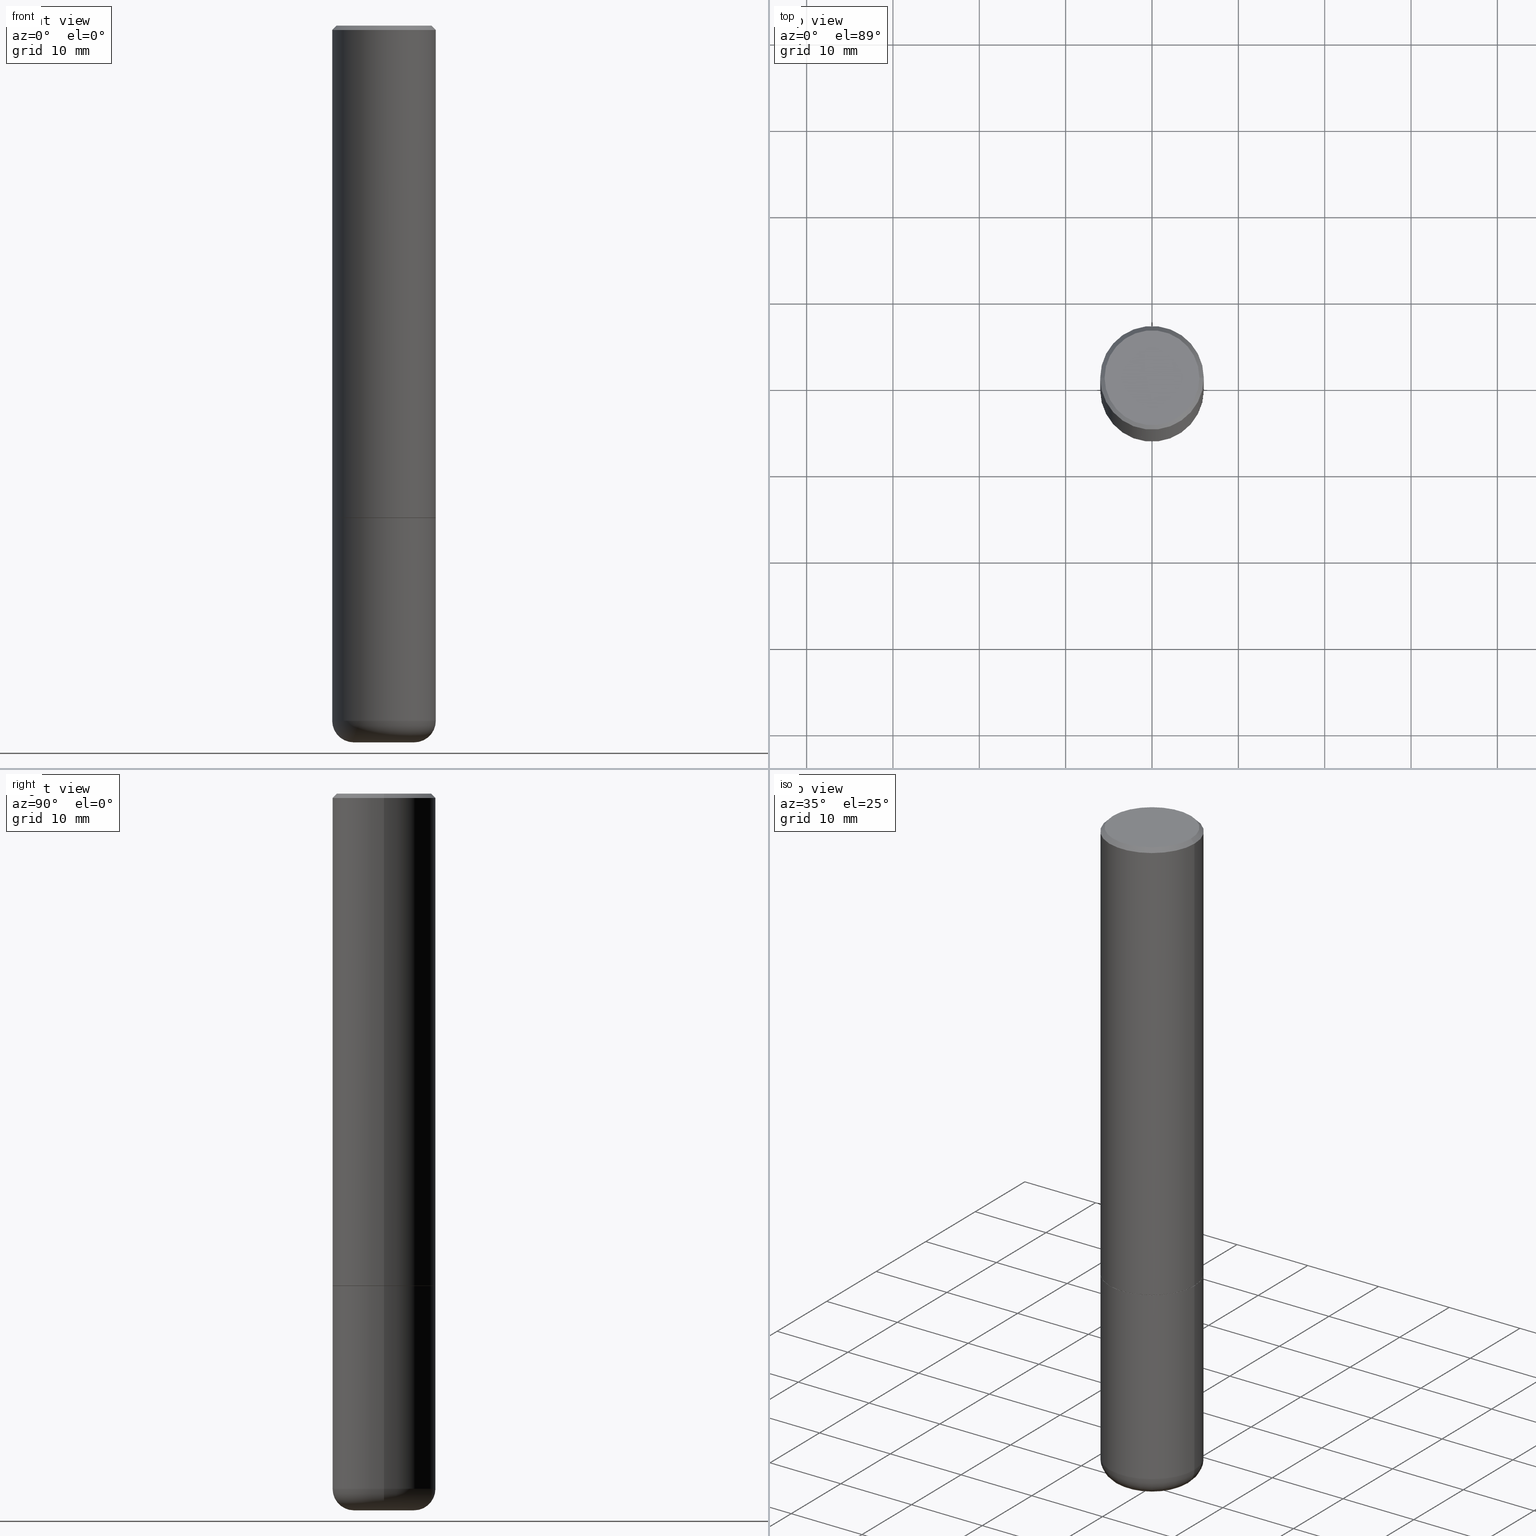
[diagram: canonical four-view strip — front | top / right | iso, engineering-drawing reading convention]
A machine part, canonical four-view strip (front | top / right | iso — engineering-drawing reading convention). The complete STEP part file that produces these views, byte-faithful:
ISO-10303-21;
HEADER;
FILE_DESCRIPTION (( 'STEP AP203' ),
    '1' );
FILE_NAME ('47030.STEP',
    '2024-03-05T13:02:55',
    ( '' ),
    ( '' ),
    'SwSTEP 2.0',
    'SolidWorks 2023',
    '' );
FILE_SCHEMA (( 'CONFIG_CONTROL_DESIGN' ));
ENDSEC;

DATA;
#1 = DIRECTION ( 'NONE',  ( -2.445468806185136597E-29, 3.491481338843145583E-15, 1.000000000000000000 ) ) ;
#2 = ORIENTED_EDGE ( 'NONE', *, *, #337, .F. ) ;
#3 = CARTESIAN_POINT ( 'NONE',  ( 4.890937612370285420E-31, -6.982962677686308865E-17, -0.02000000000000005246 ) ) ;
#4 = DIRECTION ( 'NONE',  ( 1.000000000000000000, -6.982962677686265922E-15, 0.000000000000000000 ) ) ;
#5 = EDGE_CURVE ( 'NONE', #372, #361, #114, .T. ) ;
#6 = EDGE_LOOP ( 'NONE', ( #398, #96 ) ) ;
#7 = CARTESIAN_POINT ( 'NONE',  ( 5.487876547960064752E-29, -7.835233272497902340E-15, -2.244099999999999984 ) ) ;
#8 = VECTOR ( 'NONE', #365, 39.37007874015748143 ) ;
#9 = APPROVAL ( #18, 'UNSPECIFIED' ) ;
#10 = CARTESIAN_POINT ( 'NONE',  ( 5.487876547960065873E-29, -7.835233272497903917E-15, -2.244100000000000428 ) ) ;
#11 = ORIENTED_EDGE ( 'NONE', *, *, #197, .F. ) ;
#12 = CARTESIAN_POINT ( 'NONE',  ( -0.2362000000000001321, 1.678301941865357577E-15, -1.161852468318209457E-29 ) ) ;
#13 = FACE_OUTER_BOUND ( 'NONE', #111, .T. ) ;
#14 = CIRCLE ( 'NONE', #269, 0.2362000000000000210 ) ;
#15 = ORIENTED_EDGE ( 'NONE', *, *, #363, .F. ) ;
#16 = SECURITY_CLASSIFICATION_LEVEL ( 'unclassified' ) ;
#17 = VERTEX_POINT ( 'NONE', #169 ) ;
#18 = APPROVAL_STATUS ( 'not_yet_approved' ) ;
#19 = EDGE_CURVE ( 'NONE', #196, #287, #237, .T. ) ;
#20 = VERTEX_POINT ( 'NONE', #342 ) ;
#21 = PERSON_AND_ORGANIZATION ( #63, #239 ) ;
#22 = VECTOR ( 'NONE', #134, 39.37007874015748143 ) ;
#23 = CIRCLE ( 'NONE', #52, 0.1378000000000000058 ) ;
#24 = FACE_OUTER_BOUND ( 'NONE', #43, .T. ) ;
#25 = ADVANCED_FACE ( 'NONE', ( #47 ), #244, .T. ) ;
#26 = EDGE_CURVE ( 'NONE', #74, #378, #318, .T. ) ;
#27 = DATE_AND_TIME ( #249, #290 ) ;
#28 = AXIS2_PLACEMENT_3D ( 'NONE', #152, #409, #256 ) ;
#29 = APPROVAL_PERSON_ORGANIZATION ( #379, #267, #350 ) ;
#30 = COORDINATED_UNIVERSAL_TIME_OFFSET ( 5, 0, .BEHIND. ) ;
#31 = DIRECTION ( 'NONE',  ( -2.445468806185136597E-29, 3.491481338843145583E-15, 1.000000000000000000 ) ) ;
#32 = CARTESIAN_POINT ( 'NONE',  ( -0.2361999999999999933, -7.772090597981385734E-15, -2.244100000000000428 ) ) ;
#33 = EDGE_CURVE ( 'NONE', #55, #17, #212, .T. ) ;
#34 = ORIENTED_EDGE ( 'NONE', *, *, #351, .T. ) ;
#35 = DIRECTION ( 'NONE',  ( -2.445468806185136597E-29, 3.491481338843145583E-15, 1.000000000000000000 ) ) ;
#36 = ORIENTED_EDGE ( 'NONE', *, *, #33, .T. ) ;
#37 = PRODUCT_DEFINITION ( 'UNKNOWN', '', #87, #126 ) ;
#38 = CARTESIAN_POINT ( 'NONE',  ( 0.2361999999999999933, -1.649375784469496131E-15, 1.151752954443000088E-29 ) ) ;
#39 = EDGE_CURVE ( 'NONE', #20, #17, #304, .T. ) ;
#40 = DIRECTION ( 'NONE',  ( -2.445468806185136877E-29, 3.491481338843145188E-15, 1.000000000000000000 ) ) ;
#41 = ORIENTED_EDGE ( 'NONE', *, *, #368, .F. ) ;
#42 = CARTESIAN_POINT ( 'NONE',  ( 0.000000000000000000, 0.000000000000000000, 0.000000000000000000 ) ) ;
#43 = EDGE_LOOP ( 'NONE', ( #241, #301, #407, #400 ) ) ;
#44 = DIRECTION ( 'NONE',  ( -2.445468806185136597E-29, 3.491481338843145583E-15, 1.000000000000000000 ) ) ;
#45 = CARTESIAN_POINT ( 'NONE',  ( 4.890937612370285420E-31, -6.982962677686308865E-17, -0.02000000000000005246 ) ) ;
#46 = DIRECTION ( 'NONE',  ( -2.438088387897960049E-29, 3.491481338843145188E-15, 1.000000000000000000 ) ) ;
#47 = FACE_OUTER_BOUND ( 'NONE', #69, .T. ) ;
#48 = CARTESIAN_POINT ( 'NONE',  ( 1.509716530915769534E-15, 0.2161999999999998368, -6.822935531261805704E-16 ) ) ;
#49 = EDGE_LOOP ( 'NONE', ( #376, #259, #127, #178 ) ) ;
#50 = DIRECTION ( 'NONE',  ( -2.445468806185136597E-29, 3.491481338843145583E-15, 1.000000000000000000 ) ) ;
#51 = CLOSED_SHELL ( 'NONE', ( #139, #25, #179, #215, #387, #183, #258, #340 ) ) ;
#52 = AXIS2_PLACEMENT_3D ( 'NONE', #268, #44, #73 ) ;
#53 = CARTESIAN_POINT ( 'NONE',  ( 0.000000000000000000, 0.000000000000000000, 0.000000000000000000 ) ) ;
#54 = COORDINATED_UNIVERSAL_TIME_OFFSET ( 5, 0, .BEHIND. ) ;
#55 = VERTEX_POINT ( 'NONE', #270 ) ;
#56 = DIRECTION ( 'NONE',  ( 0.000000000000000000, 0.000000000000000000, 1.000000000000000000 ) ) ;
#57 = DIRECTION ( 'NONE',  ( -1.000000000000000000, 6.982962677686266711E-15, 0.000000000000000000 ) ) ;
#58 = COORDINATED_UNIVERSAL_TIME_OFFSET ( 5, 0, .BEHIND. ) ;
#59 = CONICAL_SURFACE ( 'NONE', #288, 0.2361999999999999933, 0.7853981633974473908 ) ;
#60 = AXIS2_PLACEMENT_3D ( 'NONE', #97, #335, #170 ) ;
#61 = DATE_TIME_ROLE ( 'creation_date' ) ;
#62 = CARTESIAN_POINT ( 'NONE',  ( 0.2362000000000002153, -1.271492759166507844E-14, -3.169299999999999784 ) ) ;
#63 = PERSON ( 'UNSPECIFIED', 'UNSPECIFIED', 'UNSPECIFIED', ('UNSPECIFIED'), ('UNSPECIFIED'), ('UNSPECIFIED') ) ;
#64 = DIRECTION ( 'NONE',  ( -1.000000000000000000, 6.982962677686265922E-15, -4.876176775795935793E-29 ) ) ;
#65 = EDGE_LOOP ( 'NONE', ( #306, #242, #36, #275 ) ) ;
#66 = LINE ( 'NONE', #257, #313 ) ;
#67 = AXIS2_PLACEMENT_3D ( 'NONE', #7, #50, #377 ) ;
#68 = CARTESIAN_POINT ( 'NONE',  ( 7.750424287442554569E-29, -1.106555180719558034E-14, -3.169299999999999784 ) ) ;
#69 = EDGE_LOOP ( 'NONE', ( #374, #116, #228, #98 ) ) ;
#70 = CC_DESIGN_DATE_AND_TIME_ASSIGNMENT ( #83, #343, ( #213 ) ) ;
#71 = DIRECTION ( 'NONE',  ( 1.000000000000000000, -6.982962677686272233E-15, 0.000000000000000000 ) ) ;
#72 = VERTEX_POINT ( 'NONE', #62 ) ;
#73 = DIRECTION ( 'NONE',  ( 1.000000000000000000, -6.982962677686265922E-15, 0.000000000000000000 ) ) ;
#74 = VERTEX_POINT ( 'NONE', #32 ) ;
#75 = AXIS2_PLACEMENT_3D ( 'NONE', #251, #281, #192 ) ;
#76 = CC_DESIGN_APPROVAL ( #294, ( #213 ) ) ;
#77 = DIRECTION ( 'NONE',  ( 2.438088387897960049E-29, -3.491481338843145188E-15, -1.000000000000000000 ) ) ;
#78 = DIRECTION ( 'NONE',  ( 1.000000000000000000, -6.982962677686266711E-15, 0.000000000000000000 ) ) ;
#79 = LINE ( 'NONE', #101, #8 ) ;
#80 = ORIENTED_EDGE ( 'NONE', *, *, #120, .T. ) ;
#81 = PERSON_AND_ORGANIZATION_ROLE ( 'creator' ) ;
#82 = ORIENTED_EDGE ( 'NONE', *, *, #254, .T. ) ;
#83 = DATE_AND_TIME ( #375, #137 ) ;
#84 = DIRECTION ( 'NONE',  ( -2.445468806185136597E-29, 3.491481338843145583E-15, 1.000000000000000000 ) ) ;
#85 = ORIENTED_EDGE ( 'NONE', *, *, #411, .F. ) ;
#86 = AXIS2_PLACEMENT_3D ( 'NONE', #53, #84, #144 ) ;
#87 = PRODUCT_DEFINITION_FORMATION_WITH_SPECIFIED_SOURCE ( 'ANY', '', #104, .NOT_KNOWN. ) ;
#88 = APPROVAL_ROLE ( '' ) ;
#89 = FACE_OUTER_BOUND ( 'NONE', #264, .T. ) ;
#90 = DIRECTION ( 'NONE',  ( -2.445468806185136877E-29, 3.491481338843145188E-15, 1.000000000000000000 ) ) ;
#91 =( GEOMETRIC_REPRESENTATION_CONTEXT ( 3 ) GLOBAL_UNCERTAINTY_ASSIGNED_CONTEXT ( ( #317 ) ) GLOBAL_UNIT_ASSIGNED_CONTEXT ( ( #117, #247, #282 ) ) REPRESENTATION_CONTEXT ( 'NONE', 'WORKASPACE' ) );
#92 = PLANE ( 'NONE',  #223 ) ;
#93 = ADVANCED_FACE ( 'NONE', ( #24 ), #181, .T. ) ;
#94 = DIRECTION ( 'NONE',  ( -2.445468806185136597E-29, 3.491481338843145583E-15, 1.000000000000000000 ) ) ;
#95 = EDGE_CURVE ( 'NONE', #295, #72, #14, .T. ) ;
#96 = ORIENTED_EDGE ( 'NONE', *, *, #274, .T. ) ;
#97 = CARTESIAN_POINT ( 'NONE',  ( -3.549094808739746881E-45, 5.067166779293519988E-31, 1.451294246634139896E-16 ) ) ;
#98 = ORIENTED_EDGE ( 'NONE', *, *, #218, .F. ) ;
#99 = PLANE ( 'NONE',  #360 ) ;
#100 = EDGE_LOOP ( 'NONE', ( #2, #344, #34, #206 ) ) ;
#101 = CARTESIAN_POINT ( 'NONE',  ( -0.2351999999999999924, -6.164036757990146954E-15, -2.244099999999999984 ) ) ;
#102 = EDGE_CURVE ( 'NONE', #273, #20, #381, .T. ) ;
#103 = DIRECTION ( 'NONE',  ( 0.7071067811865469066, -7.319954787623254468E-15, -0.7071067811865481278 ) ) ;
#104 = PRODUCT ( '47030', '47030', '', ( #345 ) ) ;
#105 = ORIENTED_EDGE ( 'NONE', *, *, #309, .T. ) ;
#106 = AXIS2_PLACEMENT_3D ( 'NONE', #235, #370, #395 ) ;
#107 = CIRCLE ( 'NONE', #67, 0.2351999999999999924 ) ;
#108 = ORIENTED_EDGE ( 'NONE', *, *, #302, .T. ) ;
#109 = CALENDAR_DATE ( 2024, 5, 3 ) ;
#110 = ADVANCED_FACE ( 'NONE', ( #189 ), #224, .T. ) ;
#111 = EDGE_LOOP ( 'NONE', ( #299, #85 ) ) ;
#112 = DATE_AND_TIME ( #109, #118 ) ;
#113 = ORIENTED_EDGE ( 'NONE', *, *, #368, .T. ) ;
#114 = CIRCLE ( 'NONE', #219, 0.2351999999999999924 ) ;
#115 = AXIS2_PLACEMENT_3D ( 'NONE', #42, #296, #330 ) ;
#116 = ORIENTED_EDGE ( 'NONE', *, *, #39, .T. ) ;
#117 =( CONVERSION_BASED_UNIT ( 'INCH', #410 ) LENGTH_UNIT ( ) NAMED_UNIT ( #356 ) );
#118 = LOCAL_TIME ( 8, 2, 55.00000000000000000, #58 ) ;
#119 = DIRECTION ( 'NONE',  ( -2.445468806185136597E-29, 3.491481338843145583E-15, 1.000000000000000000 ) ) ;
#120 = EDGE_CURVE ( 'NONE', #196, #17, #216, .T. ) ;
#121 = DIRECTION ( 'NONE',  ( -2.445468806185136877E-29, 3.491481338843145188E-15, 1.000000000000000000 ) ) ;
#122 = DIRECTION ( 'NONE',  ( -2.445468806185136597E-29, 3.491481338843145583E-15, 1.000000000000000000 ) ) ;
#123 = CIRCLE ( 'NONE', #246, 0.1378000000000000058 ) ;
#124 = CYLINDRICAL_SURFACE ( 'NONE', #28, 0.2361999999999999933 ) ;
#125 = CARTESIAN_POINT ( 'NONE',  ( 7.750424287442554569E-29, -1.106555180719558034E-14, -3.169299999999999784 ) ) ;
#126 = DESIGN_CONTEXT ( 'detailed design', #298, 'design' ) ;
#127 = ORIENTED_EDGE ( 'NONE', *, *, #102, .F. ) ;
#128 = CARTESIAN_POINT ( 'NONE',  ( 0.2351999999999999924, -9.477626094289712851E-15, -2.244099999999999984 ) ) ;
#129 = CARTESIAN_POINT ( 'NONE',  ( -0.2362000000000002153, -9.387249865330223945E-15, -3.169299999999999784 ) ) ;
#130 = EDGE_CURVE ( 'NONE', #72, #378, #187, .T. ) ;
#131 = CARTESIAN_POINT ( 'NONE',  ( -0.1378000000000000058, -9.908617773195273284E-15, -3.267700000000000937 ) ) ;
#132 = DIRECTION ( 'NONE',  ( -2.445468806185136597E-29, 3.491481338843145583E-15, 1.000000000000000000 ) ) ;
#133 = DIRECTION ( 'NONE',  ( -2.445468806185136597E-29, 3.491481338843145583E-15, 1.000000000000000000 ) ) ;
#134 = DIRECTION ( 'NONE',  ( -2.445468806185136877E-29, 3.491481338843145188E-15, 1.000000000000000000 ) ) ;
#135 = MANIFOLD_SOLID_BREP ( 'Body-Move/Copy2[2]', #51 ) ;
#136 = AXIS2_PLACEMENT_3D ( 'NONE', #125, #122, #161 ) ;
#137 = LOCAL_TIME ( 8, 2, 55.00000000000000000, #243 ) ;
#138 = CARTESIAN_POINT ( 'NONE',  ( 0.2351999999999999924, -9.477626094289712851E-15, -2.244099999999999984 ) ) ;
#139 = ADVANCED_FACE ( 'NONE', ( #157 ), #412, .T. ) ;
#140 = ORIENTED_EDGE ( 'NONE', *, *, #130, .T. ) ;
#141 = PERSON_AND_ORGANIZATION ( #63, #239 ) ;
#142 = DIRECTION ( 'NONE',  ( 1.000000000000000000, -6.982962677686268288E-15, 0.000000000000000000 ) ) ;
#143 = APPROVAL_STATUS ( 'not_yet_approved' ) ;
#144 = DIRECTION ( 'NONE',  ( 1.000000000000000000, -6.982962677686266711E-15, 4.876176775795936353E-29 ) ) ;
#145 = AXIS2_PLACEMENT_3D ( 'NONE', #222, #384, #352 ) ;
#146 = PERSON_AND_ORGANIZATION_ROLE ( 'design_owner' ) ;
#147 = VECTOR ( 'NONE', #40, 39.37007874015748143 ) ;
#148 = PLANE ( 'NONE',  #75 ) ;
#149 = APPLICATION_PROTOCOL_DEFINITION ( 'international standard', 'config_control_design', 1994, #298 ) ;
#150 = APPROVAL_DATE_TIME ( #415, #294 ) ;
#151 = CIRCLE ( 'NONE', #172, 0.2361999999999999933 ) ;
#152 = CARTESIAN_POINT ( 'NONE',  ( 0.000000000000000000, 0.000000000000000000, 0.000000000000000000 ) ) ;
#153 = DIRECTION ( 'NONE',  ( 2.445468806185136597E-29, -3.491481338843145583E-15, -1.000000000000000000 ) ) ;
#154 = ORIENTED_EDGE ( 'NONE', *, *, #95, .T. ) ;
#155 = ADVANCED_FACE ( 'NONE', ( #354 ), #148, .F. ) ;
#156 = SHAPE_DEFINITION_REPRESENTATION ( #394, #405 ) ;
#157 = FACE_OUTER_BOUND ( 'NONE', #49, .T. ) ;
#158 = CIRCLE ( 'NONE', #60, 0.2161999999999998368 ) ;
#159 = CIRCLE ( 'NONE', #225, 0.2362000000000000210 ) ;
#160 = ORIENTED_EDGE ( 'NONE', *, *, #382, .F. ) ;
#161 = DIRECTION ( 'NONE',  ( 1.000000000000000000, -6.982962677686269077E-15, 4.883557194083113462E-29 ) ) ;
#162 = CARTESIAN_POINT ( 'NONE',  ( 7.750424287442554569E-29, -1.106555180719558034E-14, -3.169299999999999784 ) ) ;
#163 = DIRECTION ( 'NONE',  ( -2.445468806185136597E-29, 3.491481338843145583E-15, 1.000000000000000000 ) ) ;
#164 = CC_DESIGN_PERSON_AND_ORGANIZATION_ASSIGNMENT ( #21, #146, ( #104 ) ) ;
#165 = ORIENTED_EDGE ( 'NONE', *, *, #197, .T. ) ;
#166 = DIRECTION ( 'NONE',  ( -2.445468806185136597E-29, 3.491481338843145583E-15, 1.000000000000000000 ) ) ;
#167 = DIRECTION ( 'NONE',  ( -2.445468806185136597E-29, 3.491481338843145583E-15, 1.000000000000000000 ) ) ;
#168 = DIRECTION ( 'NONE',  ( 1.000000000000000000, -6.982962677686265922E-15, 4.876176775795935793E-29 ) ) ;
#169 = CARTESIAN_POINT ( 'NONE',  ( -0.2361999999999999933, 1.579546157692633030E-15, -0.02000000000000005246 ) ) ;
#170 = DIRECTION ( 'NONE',  ( 1.000000000000000000, -6.982962677686266711E-15, 4.881916136609865378E-29 ) ) ;
#171 = ORIENTED_EDGE ( 'NONE', *, *, #130, .F. ) ;
#172 = AXIS2_PLACEMENT_3D ( 'NONE', #3, #119, #416 ) ;
#173 = CC_DESIGN_PERSON_AND_ORGANIZATION_ASSIGNMENT ( #210, #341, ( #87 ) ) ;
#174 = LOCAL_TIME ( 8, 2, 55.00000000000000000, #217 ) ;
#175 = APPROVAL_DATE_TIME ( #316, #9 ) ;
#176 = EDGE_LOOP ( 'NONE', ( #230, #324 ) ) ;
#177 = PERSON_AND_ORGANIZATION ( #63, #239 ) ;
#178 = ORIENTED_EDGE ( 'NONE', *, *, #351, .F. ) ;
#179 = ADVANCED_FACE ( 'NONE', ( #357 ), #59, .T. ) ;
#180 = FACE_OUTER_BOUND ( 'NONE', #233, .T. ) ;
#181 = TOROIDAL_SURFACE ( 'NONE', #136, 0.1378000000000000058, 0.09840000000000040381 ) ;
#182 = APPROVAL_ROLE ( '' ) ;
#183 = ADVANCED_FACE ( 'NONE', ( #322 ), #358, .T. ) ;
#184 = CC_DESIGN_PERSON_AND_ORGANIZATION_ASSIGNMENT ( #373, #81, ( #87 ) ) ;
#185 = DIRECTION ( 'NONE',  ( -2.445468806185136597E-29, 3.491481338843145583E-15, 1.000000000000000000 ) ) ;
#186 = AXIS2_PLACEMENT_3D ( 'NONE', #68, #265, #263 ) ;
#187 = LINE ( 'NONE', #38, #297 ) ;
#188 = ADVANCED_FACE ( 'NONE', ( #180 ), #124, .T. ) ;
#189 = FACE_OUTER_BOUND ( 'NONE', #191, .T. ) ;
#190 = CC_DESIGN_DATE_AND_TIME_ASSIGNMENT ( #112, #61, ( #37 ) ) ;
#191 = EDGE_LOOP ( 'NONE', ( #41, #154, #140, #402 ) ) ;
#192 = DIRECTION ( 'NONE',  ( -1.000000000000000000, 6.982962677686265922E-15, -4.876176775795935793E-29 ) ) ;
#193 = VECTOR ( 'NONE', #292, 39.37007874015748143 ) ;
#194 = LOCAL_TIME ( 8, 2, 55.00000000000000000, #30 ) ;
#195 = DIRECTION ( 'NONE',  ( 1.000000000000000000, -6.982962677686269077E-15, 0.000000000000000000 ) ) ;
#196 = VERTEX_POINT ( 'NONE', #414 ) ;
#197 = EDGE_CURVE ( 'NONE', #17, #55, #151, .T. ) ;
#198 = CARTESIAN_POINT ( 'NONE',  ( -0.2361999999999999933, 1.678301941865356591E-15, -1.161852468318208757E-29 ) ) ;
#199 = ORIENTED_EDGE ( 'NONE', *, *, #39, .F. ) ;
#200 = FACE_OUTER_BOUND ( 'NONE', #329, .T. ) ;
#201 = CC_DESIGN_PERSON_AND_ORGANIZATION_ASSIGNMENT ( #280, #347, ( #37 ) ) ;
#202 = CLOSED_SHELL ( 'NONE', ( #188, #332, #155, #110, #93, #231 ) ) ;
#203 = AXIS2_PLACEMENT_3D ( 'NONE', #392, #185, #390 ) ;
#204 = ORIENTED_EDGE ( 'NONE', *, *, #321, .F. ) ;
#205 = DIRECTION ( 'NONE',  ( 0.7071067811867165487, -2.468850131084027659E-15, 0.7071067811863784858 ) ) ;
#206 = ORIENTED_EDGE ( 'NONE', *, *, #309, .F. ) ;
#207 = DIRECTION ( 'NONE',  ( -1.000000000000000000, 6.982962677686265922E-15, -4.876176775795935793E-29 ) ) ;
#208 = EDGE_LOOP ( 'NONE', ( #334, #204 ) ) ;
#209 = PRODUCT_RELATED_PRODUCT_CATEGORY ( 'detail', '', ( #104 ) ) ;
#210 = PERSON_AND_ORGANIZATION ( #63, #239 ) ;
#211 = CARTESIAN_POINT ( 'NONE',  ( -3.549094808739746881E-45, 5.067166779293519988E-31, 1.451294246634139896E-16 ) ) ;
#212 = CIRCLE ( 'NONE', #417, 0.2361999999999999933 ) ;
#213 = SECURITY_CLASSIFICATION ( '', '', #16 ) ;
#214 = ORIENTED_EDGE ( 'NONE', *, *, #19, .F. ) ;
#215 = ADVANCED_FACE ( 'NONE', ( #89 ), #331, .T. ) ;
#216 = LINE ( 'NONE', #289, #193 ) ;
#217 = COORDINATED_UNIVERSAL_TIME_OFFSET ( 5, 0, .BEHIND. ) ;
#218 = EDGE_CURVE ( 'NONE', #273, #55, #285, .T. ) ;
#219 = AXIS2_PLACEMENT_3D ( 'NONE', #404, #238, #142 ) ;
#220 = CARTESIAN_POINT ( 'NONE',  ( 0.000000000000000000, 0.000000000000000000, 0.000000000000000000 ) ) ;
#221 = CC_DESIGN_APPROVAL ( #267, ( #37 ) ) ;
#222 = CARTESIAN_POINT ( 'NONE',  ( 4.890937612370285420E-31, -6.982962677686308865E-17, -0.02000000000000005246 ) ) ;
#223 = AXIS2_PLACEMENT_3D ( 'NONE', #226, #355, #64 ) ;
#224 = CYLINDRICAL_SURFACE ( 'NONE', #255, 0.2361999999999999933 ) ;
#225 = AXIS2_PLACEMENT_3D ( 'NONE', #162, #163, #293 ) ;
#226 = CARTESIAN_POINT ( 'NONE',  ( -1.056246086601801167E-29, -2.436536856207956870E-14, -3.267700000000000937 ) ) ;
#227 = CARTESIAN_POINT ( 'NONE',  ( 4.890937612370285420E-31, -6.982962677686308865E-17, -0.02000000000000005246 ) ) ;
#228 = ORIENTED_EDGE ( 'NONE', *, *, #33, .F. ) ;
#229 = CARTESIAN_POINT ( 'NONE',  ( 5.487876547960065873E-29, -7.835233272497903917E-15, -2.244100000000000428 ) ) ;
#230 = ORIENTED_EDGE ( 'NONE', *, *, #363, .T. ) ;
#231 = ADVANCED_FACE ( 'NONE', ( #253 ), #92, .T. ) ;
#232 = CARTESIAN_POINT ( 'NONE',  ( 0.1378000000000000058, -1.202780406418074782E-14, -3.169299999999999784 ) ) ;
#233 = EDGE_LOOP ( 'NONE', ( #311, #113, #15, #171 ) ) ;
#234 = DIRECTION ( 'NONE',  ( -2.445468806185136597E-29, 3.491481338843145583E-15, 1.000000000000000000 ) ) ;
#235 = CARTESIAN_POINT ( 'NONE',  ( -0.1378000000000000058, -1.008642391731816283E-14, -3.169299999999999784 ) ) ;
#236 = EDGE_CURVE ( 'NONE', #287, #55, #66, .T. ) ;
#237 = CIRCLE ( 'NONE', #353, 0.2161999999999998368 ) ;
#238 = DIRECTION ( 'NONE',  ( -2.445468806185136597E-29, 3.491481338843145583E-15, 1.000000000000000000 ) ) ;
#239 = ORGANIZATION ( 'UNSPECIFIED', 'UNSPECIFIED', '' ) ;
#240 = DIRECTION ( 'NONE',  ( 1.000000000000000000, -6.982962677686269077E-15, 0.000000000000000000 ) ) ;
#241 = ORIENTED_EDGE ( 'NONE', *, *, #254, .F. ) ;
#242 = ORIENTED_EDGE ( 'NONE', *, *, #236, .T. ) ;
#243 = COORDINATED_UNIVERSAL_TIME_OFFSET ( 5, 0, .BEHIND. ) ;
#244 = CYLINDRICAL_SURFACE ( 'NONE', #86, 0.2362000000000001321 ) ;
#245 = AXIS2_PLACEMENT_3D ( 'NONE', #286, #94, #383 ) ;
#246 = AXIS2_PLACEMENT_3D ( 'NONE', #399, #234, #4 ) ;
#247 =( NAMED_UNIT ( * ) PLANE_ANGLE_UNIT ( ) SI_UNIT ( $, .RADIAN. ) );
#248 = ORIENTED_EDGE ( 'NONE', *, *, #218, .T. ) ;
#249 = CALENDAR_DATE ( 2024, 5, 3 ) ;
#250 = AXIS2_PLACEMENT_3D ( 'NONE', #305, #133, #240 ) ;
#251 = CARTESIAN_POINT ( 'NONE',  ( 5.487876547960065873E-29, -7.835233272497903917E-15, -2.244100000000000428 ) ) ;
#252 = APPLICATION_CONTEXT ( 'configuration controlled 3d designs of mechanical parts and assemblies' ) ;
#253 = FACE_OUTER_BOUND ( 'NONE', #208, .T. ) ;
#254 = EDGE_CURVE ( 'NONE', #291, #295, #385, .T. ) ;
#255 = AXIS2_PLACEMENT_3D ( 'NONE', #323, #31, #312 ) ;
#256 = DIRECTION ( 'NONE',  ( 1.000000000000000000, -6.982962677686266711E-15, 4.876176775795936353E-29 ) ) ;
#257 = CARTESIAN_POINT ( 'NONE',  ( 0.2361999999999999933, -1.690279253850498771E-15, -0.02000000000000005246 ) ) ;
#258 = ADVANCED_FACE ( 'NONE', ( #13 ), #338, .F. ) ;
#259 = ORIENTED_EDGE ( 'NONE', *, *, #337, .T. ) ;
#260 = CARTESIAN_POINT ( 'NONE',  ( 7.750424287442554569E-29, -1.106555180719558034E-14, -3.169299999999999784 ) ) ;
#261 = CARTESIAN_POINT ( 'NONE',  ( 0.2361999999999999933, -9.484609056967400443E-15, -2.244100000000000428 ) ) ;
#262 = APPROVAL_PERSON_ORGANIZATION ( #177, #294, #88 ) ;
#263 = DIRECTION ( 'NONE',  ( 1.000000000000000000, -6.982962677686269077E-15, 4.883557194083113462E-29 ) ) ;
#264 = EDGE_LOOP ( 'NONE', ( #391, #214, #80, #165 ) ) ;
#265 = DIRECTION ( 'NONE',  ( -2.445468806185136597E-29, 3.491481338843145583E-15, 1.000000000000000000 ) ) ;
#266 = CARTESIAN_POINT ( 'NONE',  ( 5.487876547960065873E-29, -7.835233272497903917E-15, -2.244100000000000428 ) ) ;
#267 = APPROVAL ( #143, 'UNSPECIFIED' ) ;
#268 = CARTESIAN_POINT ( 'NONE',  ( 7.991058417971172834E-29, -1.140911357093774960E-14, -3.267700000000000937 ) ) ;
#269 = AXIS2_PLACEMENT_3D ( 'NONE', #260, #35, #325 ) ;
#270 = CARTESIAN_POINT ( 'NONE',  ( 0.2361999999999999933, -1.690279253850498771E-15, -0.02000000000000005246 ) ) ;
#271 = AXIS2_PLACEMENT_3D ( 'NONE', #232, #362, #71 ) ;
#272 = CARTESIAN_POINT ( 'NONE',  ( -0.2351999999999999924, -6.158738303641923763E-15, -2.244099999999999984 ) ) ;
#273 = VERTEX_POINT ( 'NONE', #393 ) ;
#274 = EDGE_CURVE ( 'NONE', #287, #196, #158, .T. ) ;
#275 = ORIENTED_EDGE ( 'NONE', *, *, #120, .F. ) ;
#276 = APPROVAL_DATE_TIME ( #27, #267 ) ;
#277 = DIRECTION ( 'NONE',  ( 1.000000000000000000, -6.982962677686269077E-15, 0.000000000000000000 ) ) ;
#278 = AXIS2_PLACEMENT_3D ( 'NONE', #320, #1, #346 ) ;
#279 = VECTOR ( 'NONE', #205, 39.37007874015748143 ) ;
#280 = PERSON_AND_ORGANIZATION ( #63, #239 ) ;
#281 = DIRECTION ( 'NONE',  ( 2.438088387897960049E-29, -3.491481338843145188E-15, -1.000000000000000000 ) ) ;
#282 =( NAMED_UNIT ( * ) SI_UNIT ( $, .STERADIAN. ) SOLID_ANGLE_UNIT ( ) );
#283 = APPROVAL_STATUS ( 'not_yet_approved' ) ;
#284 = CC_DESIGN_APPROVAL ( #9, ( #87 ) ) ;
#285 = LINE ( 'NONE', #388, #406 ) ;
#286 = CARTESIAN_POINT ( 'NONE',  ( 5.487876547960064752E-29, -7.835233272497902340E-15, -2.244099999999999984 ) ) ;
#287 = VERTEX_POINT ( 'NONE', #303 ) ;
#288 = AXIS2_PLACEMENT_3D ( 'NONE', #227, #153, #57 ) ;
#289 = CARTESIAN_POINT ( 'NONE',  ( -0.2361999999999999933, 1.579546157692633030E-15, -0.02000000000000005246 ) ) ;
#290 = LOCAL_TIME ( 8, 2, 55.00000000000000000, #54 ) ;
#291 = VERTEX_POINT ( 'NONE', #131 ) ;
#292 = DIRECTION ( 'NONE',  ( -0.7071067811865469066, 2.468850131082250355E-15, -0.7071067811865481278 ) ) ;
#293 = DIRECTION ( 'NONE',  ( 1.000000000000000000, -6.982962677686264344E-15, 0.000000000000000000 ) ) ;
#294 = APPROVAL ( #283, 'UNSPECIFIED' ) ;
#295 = VERTEX_POINT ( 'NONE', #129 ) ;
#296 = DIRECTION ( 'NONE',  ( -2.445468806185136597E-29, 3.491481338843145583E-15, 1.000000000000000000 ) ) ;
#297 = VECTOR ( 'NONE', #90, 39.37007874015748143 ) ;
#298 = APPLICATION_CONTEXT ( 'configuration controlled 3d designs of mechanical parts and assemblies' ) ;
#299 = ORIENTED_EDGE ( 'NONE', *, *, #5, .F. ) ;
#300 = FACE_OUTER_BOUND ( 'NONE', #6, .T. ) ;
#301 = ORIENTED_EDGE ( 'NONE', *, *, #321, .T. ) ;
#302 = EDGE_CURVE ( 'NONE', #336, #291, #23, .T. ) ;
#303 = CARTESIAN_POINT ( 'NONE',  ( 0.2161999999999998368, -1.586759460484351002E-15, 1.451294246634248118E-16 ) ) ;
#304 = LINE ( 'NONE', #12, #22 ) ;
#305 = CARTESIAN_POINT ( 'NONE',  ( 5.485431079153880270E-29, -7.831741791159060910E-15, -2.243100000000000094 ) ) ;
#306 = ORIENTED_EDGE ( 'NONE', *, *, #274, .F. ) ;
#307 = CIRCLE ( 'NONE', #250, 0.2362000000000002709 ) ;
#308 =( LENGTH_UNIT ( ) NAMED_UNIT ( * ) SI_UNIT ( $, .METRE. ) );
#309 = EDGE_CURVE ( 'NONE', #20, #273, #307, .T. ) ;
#310 = DIRECTION ( 'NONE',  ( 1.000000000000000000, -6.982962677686266711E-15, 4.881916136609865378E-29 ) ) ;
#311 = ORIENTED_EDGE ( 'NONE', *, *, #371, .T. ) ;
#312 = DIRECTION ( 'NONE',  ( 1.000000000000000000, -6.982962677686266711E-15, 4.876176775795936353E-29 ) ) ;
#313 = VECTOR ( 'NONE', #103, 39.37007874015748143 ) ;
#314 = TOROIDAL_SURFACE ( 'NONE', #186, 0.1378000000000000058, 0.09840000000000040381 ) ;
#315 = APPLICATION_PROTOCOL_DEFINITION ( 'international standard', 'config_control_design', 1994, #252 ) ;
#316 = DATE_AND_TIME ( #380, #174 ) ;
#317 = UNCERTAINTY_MEASURE_WITH_UNIT (LENGTH_MEASURE( 1.000000000000000082E-05 ), #117, 'distance_accuracy_value', 'NONE');
#318 = CIRCLE ( 'NONE', #366, 0.2361999999999999933 ) ;
#319 = AXIS2_PLACEMENT_3D ( 'NONE', #229, #166, #195 ) ;
#320 = CARTESIAN_POINT ( 'NONE',  ( 5.487876547960064752E-29, -7.835233272497902340E-15, -2.244099999999999984 ) ) ;
#321 = EDGE_CURVE ( 'NONE', #291, #336, #123, .T. ) ;
#322 = FACE_OUTER_BOUND ( 'NONE', #100, .T. ) ;
#323 = CARTESIAN_POINT ( 'NONE',  ( 0.000000000000000000, 0.000000000000000000, 0.000000000000000000 ) ) ;
#324 = ORIENTED_EDGE ( 'NONE', *, *, #26, .T. ) ;
#325 = DIRECTION ( 'NONE',  ( 1.000000000000000000, -6.982962677686264344E-15, 0.000000000000000000 ) ) ;
#326 = LINE ( 'NONE', #198, #147 ) ;
#327 = ORIENTED_EDGE ( 'NONE', *, *, #371, .F. ) ;
#328 = CYLINDRICAL_SURFACE ( 'NONE', #115, 0.2362000000000001321 ) ;
#329 = EDGE_LOOP ( 'NONE', ( #199, #105, #248, #11 ) ) ;
#330 = DIRECTION ( 'NONE',  ( 1.000000000000000000, -6.982962677686266711E-15, 4.876176775795936353E-29 ) ) ;
#331 = CONICAL_SURFACE ( 'NONE', #145, 0.2361999999999999933, 0.7853981633974473908 ) ;
#332 = ADVANCED_FACE ( 'NONE', ( #359 ), #314, .T. ) ;
#333 = APPROVAL_PERSON_ORGANIZATION ( #408, #9, #182 ) ;
#334 = ORIENTED_EDGE ( 'NONE', *, *, #302, .F. ) ;
#335 = DIRECTION ( 'NONE',  ( -2.445468806185136597E-29, 3.491481338843145583E-15, 1.000000000000000000 ) ) ;
#336 = VERTEX_POINT ( 'NONE', #397 ) ;
#337 = EDGE_CURVE ( 'NONE', #361, #20, #79, .T. ) ;
#338 = PLANE ( 'NONE',  #348 ) ;
#339 = EDGE_LOOP ( 'NONE', ( #108, #82, #327, #160 ) ) ;
#340 = ADVANCED_FACE ( 'NONE', ( #300 ), #99, .F. ) ;
#341 = PERSON_AND_ORGANIZATION_ROLE ( 'design_supplier' ) ;
#342 = CARTESIAN_POINT ( 'NONE',  ( -0.2362000000000002986, -2.272483767102600582E-15, -2.243100000000000094 ) ) ;
#343 = DATE_TIME_ROLE ( 'classification_date' ) ;
#344 = ORIENTED_EDGE ( 'NONE', *, *, #411, .T. ) ;
#345 = MECHANICAL_CONTEXT ( 'NONE', #252, 'mechanical' ) ;
#346 = DIRECTION ( 'NONE',  ( 1.000000000000000000, -6.982962677686268288E-15, 0.000000000000000000 ) ) ;
#347 = PERSON_AND_ORGANIZATION_ROLE ( 'creator' ) ;
#348 = AXIS2_PLACEMENT_3D ( 'NONE', #10, #46, #168 ) ;
#349 = AXIS2_PLACEMENT_3D ( 'NONE', #220, #56, #401 ) ;
#350 = APPROVAL_ROLE ( '' ) ;
#351 = EDGE_CURVE ( 'NONE', #372, #273, #364, .T. ) ;
#352 = DIRECTION ( 'NONE',  ( -1.000000000000000000, 6.982962677686266711E-15, 0.000000000000000000 ) ) ;
#353 = AXIS2_PLACEMENT_3D ( 'NONE', #211, #132, #310 ) ;
#354 = FACE_OUTER_BOUND ( 'NONE', #176, .T. ) ;
#355 = DIRECTION ( 'NONE',  ( 2.438088387897960049E-29, -3.491481338843145188E-15, -1.000000000000000000 ) ) ;
#356 = DIMENSIONAL_EXPONENTS ( 1.000000000000000000, 0.000000000000000000, 0.000000000000000000, 0.000000000000000000, 0.000000000000000000, 0.000000000000000000, 0.000000000000000000 ) ;
#357 = FACE_OUTER_BOUND ( 'NONE', #65, .T. ) ;
#358 = CONICAL_SURFACE ( 'NONE', #245, 0.2351999999999999924, 0.7853981633976873100 ) ;
#359 = FACE_OUTER_BOUND ( 'NONE', #339, .T. ) ;
#360 = AXIS2_PLACEMENT_3D ( 'NONE', #48, #77, #207 ) ;
#361 = VERTEX_POINT ( 'NONE', #272 ) ;
#362 = DIRECTION ( 'NONE',  ( -6.982962677686266711E-15, -1.000000000000000000, 3.491481338843145583E-15 ) ) ;
#363 = EDGE_CURVE ( 'NONE', #378, #74, #418, .T. ) ;
#364 = LINE ( 'NONE', #138, #279 ) ;
#365 = DIRECTION ( 'NONE',  ( -0.7071067811867165487, 7.493145998870964739E-15, 0.7071067811863784858 ) ) ;
#366 = AXIS2_PLACEMENT_3D ( 'NONE', #266, #167, #277 ) ;
#367 = CC_DESIGN_SECURITY_CLASSIFICATION ( #213, ( #87 ) ) ;
#368 = EDGE_CURVE ( 'NONE', #295, #74, #326, .T. ) ;
#369 = DIRECTION ( 'NONE',  ( -2.445468806185136597E-29, 3.491481338843145583E-15, 1.000000000000000000 ) ) ;
#370 = DIRECTION ( 'NONE',  ( 7.105427357601001859E-15, 1.000000000000000000, -3.491481338843145583E-15 ) ) ;
#371 = EDGE_CURVE ( 'NONE', #72, #295, #159, .T. ) ;
#372 = VERTEX_POINT ( 'NONE', #128 ) ;
#373 = PERSON_AND_ORGANIZATION ( #63, #239 ) ;
#374 = ORIENTED_EDGE ( 'NONE', *, *, #102, .T. ) ;
#375 = CALENDAR_DATE ( 2024, 5, 3 ) ;
#376 = ORIENTED_EDGE ( 'NONE', *, *, #5, .T. ) ;
#377 = DIRECTION ( 'NONE',  ( 1.000000000000000000, -6.982962677686268288E-15, 0.000000000000000000 ) ) ;
#378 = VERTEX_POINT ( 'NONE', #261 ) ;
#379 = PERSON_AND_ORGANIZATION ( #63, #239 ) ;
#380 = CALENDAR_DATE ( 2024, 5, 3 ) ;
#381 = CIRCLE ( 'NONE', #203, 0.2362000000000002709 ) ;
#382 = EDGE_CURVE ( 'NONE', #336, #72, #386, .T. ) ;
#383 = DIRECTION ( 'NONE',  ( 1.000000000000000000, -6.982962677686268288E-15, 0.000000000000000000 ) ) ;
#384 = DIRECTION ( 'NONE',  ( 2.445468806185136597E-29, -3.491481338843145583E-15, -1.000000000000000000 ) ) ;
#385 = CIRCLE ( 'NONE', #106, 0.09840000000000040381 ) ;
#386 = CIRCLE ( 'NONE', #271, 0.09840000000000040381 ) ;
#387 = ADVANCED_FACE ( 'NONE', ( #200 ), #328, .T. ) ;
#388 = CARTESIAN_POINT ( 'NONE',  ( 0.2362000000000001321, -1.649375784469497117E-15, 1.151752954443000789E-29 ) ) ;
#389 = CALENDAR_DATE ( 2024, 5, 3 ) ;
#390 = DIRECTION ( 'NONE',  ( 1.000000000000000000, -6.982962677686269077E-15, 0.000000000000000000 ) ) ;
#391 = ORIENTED_EDGE ( 'NONE', *, *, #236, .F. ) ;
#392 = CARTESIAN_POINT ( 'NONE',  ( 5.485431079153880270E-29, -7.831741791159060910E-15, -2.243100000000000094 ) ) ;
#393 = CARTESIAN_POINT ( 'NONE',  ( 0.2362000000000002709, -9.481117575628559013E-15, -2.243100000000000094 ) ) ;
#394 = PRODUCT_DEFINITION_SHAPE ( 'NONE', 'NONE',  #37 ) ;
#395 = DIRECTION ( 'NONE',  ( -1.000000000000000000, 7.105427357601009747E-15, 0.000000000000000000 ) ) ;
#396 = CC_DESIGN_PERSON_AND_ORGANIZATION_ASSIGNMENT ( #141, #403, ( #213 ) ) ;
#397 = CARTESIAN_POINT ( 'NONE',  ( 0.1378000000000000058, -1.237136582792291707E-14, -3.267700000000000937 ) ) ;
#398 = ORIENTED_EDGE ( 'NONE', *, *, #19, .T. ) ;
#399 = CARTESIAN_POINT ( 'NONE',  ( 7.991058417971172834E-29, -1.140911357093774960E-14, -3.267700000000000937 ) ) ;
#400 = ORIENTED_EDGE ( 'NONE', *, *, #95, .F. ) ;
#401 = DIRECTION ( 'NONE',  ( 1.000000000000000000, 0.000000000000000000, 0.000000000000000000 ) ) ;
#402 = ORIENTED_EDGE ( 'NONE', *, *, #26, .F. ) ;
#403 = PERSON_AND_ORGANIZATION_ROLE ( 'classification_officer' ) ;
#404 = CARTESIAN_POINT ( 'NONE',  ( 5.487876547960064752E-29, -7.835233272497902340E-15, -2.244099999999999984 ) ) ;
#405 = ADVANCED_BREP_SHAPE_REPRESENTATION ( '47030', ( #413, #135, #349 ), #91 ) ;
#406 = VECTOR ( 'NONE', #121, 39.37007874015748143 ) ;
#407 = ORIENTED_EDGE ( 'NONE', *, *, #382, .T. ) ;
#408 = PERSON_AND_ORGANIZATION ( #63, #239 ) ;
#409 = DIRECTION ( 'NONE',  ( -2.445468806185136597E-29, 3.491481338843145583E-15, 1.000000000000000000 ) ) ;
#410 = LENGTH_MEASURE_WITH_UNIT ( LENGTH_MEASURE( 0.02539999999999999897 ), #308 );
#411 = EDGE_CURVE ( 'NONE', #361, #372, #107, .T. ) ;
#412 = CONICAL_SURFACE ( 'NONE', #278, 0.2351999999999999924, 0.7853981633976873100 ) ;
#413 = MANIFOLD_SOLID_BREP ( 'Body-Move/Copy2[1]', #202 ) ;
#414 = CARTESIAN_POINT ( 'NONE',  ( -0.2161999999999998368, 1.544631344304201775E-15, 1.451294246634033154E-16 ) ) ;
#415 = DATE_AND_TIME ( #389, #194 ) ;
#416 = DIRECTION ( 'NONE',  ( 1.000000000000000000, -6.982962677686266711E-15, 0.000000000000000000 ) ) ;
#417 = AXIS2_PLACEMENT_3D ( 'NONE', #45, #369, #78 ) ;
#418 = CIRCLE ( 'NONE', #319, 0.2361999999999999933 ) ;
ENDSEC;
END-ISO-10303-21;
